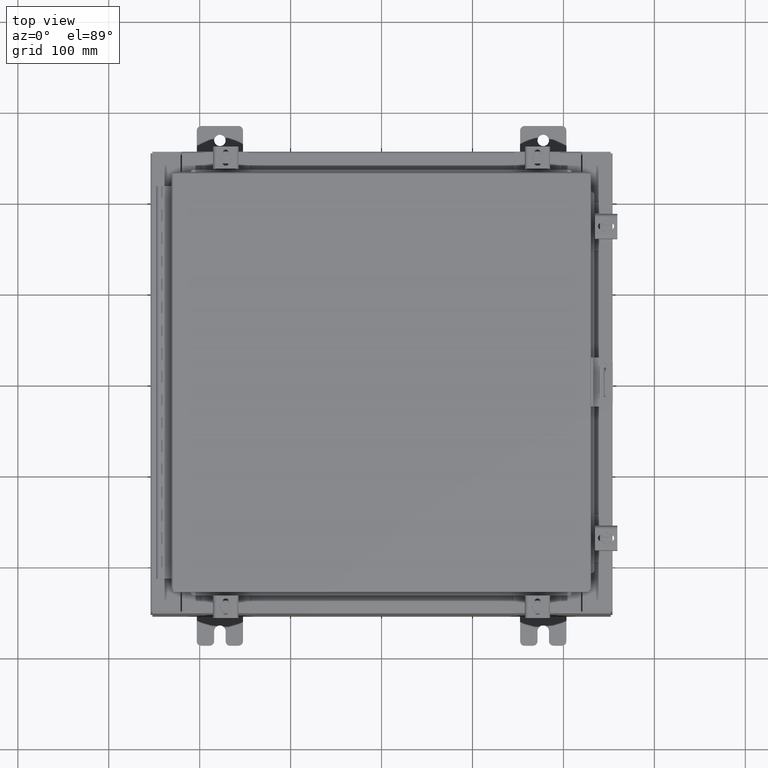
[diagram: clean part render]
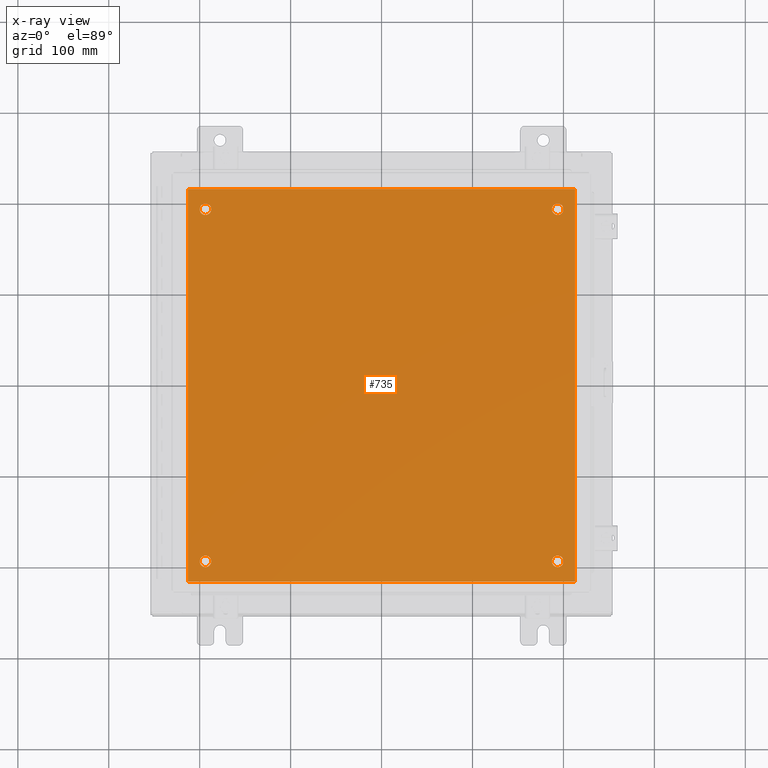
[diagram: x-ray — body ghosted, one internal face saturated and labeled with its STEP entity id]
A machine part, top view, then the same camera in x-ray: the body is ghosted and one INTERNAL B-rep face — a face not visible from any outside direction — is saturated and labeled: STEP entity #735.
In plain terms, the highlighted planar face has unit normal (0, 0, -1).
Its self-contained STEP definition (entity closure, byte-faithful):
#221 = AXIS2_PLACEMENT_3D ( 'NONE', #26834, #13195, #29152 ) ;
#227 = ORIENTED_EDGE ( 'NONE', *, *, #27272, .T. ) ;
#625 = DIRECTION ( 'NONE',  ( -0.0000000000000000000, -0.0000000000000000000, 1.000000000000000000 ) ) ;
#735 = ADVANCED_FACE ( 'NONE', ( #25279, #9274, #26006, #7859, #19254 ), #19135, .T. ) ;
#1739 = CARTESIAN_POINT ( 'NONE',  ( -8.500000000000000000, 8.500000000000000000, -0.1039999999999999800 ) ) ;
#1829 = VERTEX_POINT ( 'NONE', #10276 ) ;
#1837 = VECTOR ( 'NONE', #27667, 39.37007874015748100 ) ;
#1838 = VECTOR ( 'NONE', #4315, 39.37007874015748100 ) ;
#2103 = CARTESIAN_POINT ( 'NONE',  ( 7.375000000000003600, -7.625000000000000900, -0.1039999999999999800 ) ) ;
#2475 = EDGE_CURVE ( 'NONE', #26528, #27061, #7410, .T. ) ;
#2743 = DIRECTION ( 'NONE',  ( -0.0000000000000000000, -0.0000000000000000000, 1.000000000000000000 ) ) ;
#2793 = VERTEX_POINT ( 'NONE', #17335 ) ;
#3211 = AXIS2_PLACEMENT_3D ( 'NONE', #11004, #26928, #13293 ) ;
#3584 = VERTEX_POINT ( 'NONE', #8891 ) ;
#3894 = EDGE_LOOP ( 'NONE', ( #23508, #23464 ) ) ;
#4008 = EDGE_LOOP ( 'NONE', ( #28968, #29162, #14087, #11214 ) ) ;
#4076 = CIRCLE ( 'NONE', #25854, 0.2499999999999987000 ) ;
#4274 = ORIENTED_EDGE ( 'NONE', *, *, #26580, .T. ) ;
#4315 = DIRECTION ( 'NONE',  ( 0.0000000000000000000, 1.000000000000000000, 0.0000000000000000000 ) ) ;
#4427 = CARTESIAN_POINT ( 'NONE',  ( -7.875000000000001800, 7.625000000000000900, -0.1039999999999999800 ) ) ;
#4857 = VECTOR ( 'NONE', #19844, 39.37007874015748100 ) ;
#5639 = CARTESIAN_POINT ( 'NONE',  ( -7.625000000000001800, -7.625000000000000900, -0.1039999999999999800 ) ) ;
#6225 = CARTESIAN_POINT ( 'NONE',  ( -7.625000000000001800, -7.625000000000000900, -0.1039999999999999800 ) ) ;
#6639 = AXIS2_PLACEMENT_3D ( 'NONE', #14253, #625, #16538 ) ;
#6884 = ORIENTED_EDGE ( 'NONE', *, *, #25566, .T. ) ;
#7059 = VERTEX_POINT ( 'NONE', #18304 ) ;
#7326 = CIRCLE ( 'NONE', #10448, 0.2499999999999998100 ) ;
#7410 = CIRCLE ( 'NONE', #19947, 0.2499999999999987000 ) ;
#7736 = CARTESIAN_POINT ( 'NONE',  ( -8.500000000000000000, -8.499999999999998200, -0.1039999999999999800 ) ) ;
#7859 = FACE_BOUND ( 'NONE', #26220, .T. ) ;
#7866 = CIRCLE ( 'NONE', #11365, 0.2499999999999998100 ) ;
#7891 = LINE ( 'NONE', #14041, #1837 ) ;
#7900 = DIRECTION ( 'NONE',  ( -1.000000000000000000, 0.0000000000000000000, 0.0000000000000000000 ) ) ;
#8489 = DIRECTION ( 'NONE',  ( -1.000000000000000000, 0.0000000000000000000, 0.0000000000000000000 ) ) ;
#8724 = VECTOR ( 'NONE', #21356, 39.37007874015748100 ) ;
#8891 = CARTESIAN_POINT ( 'NONE',  ( -8.382999999999999100, 8.500000000000000000, -0.1039999999999998100 ) ) ;
#9108 = AXIS2_PLACEMENT_3D ( 'NONE', #5639, #21547, #7900 ) ;
#9274 = FACE_BOUND ( 'NONE', #12175, .T. ) ;
#9465 = VERTEX_POINT ( 'NONE', #21802 ) ;
#9807 = CARTESIAN_POINT ( 'NONE',  ( -7.375000000000001800, 7.625000000000000900, -0.1039999999999999800 ) ) ;
#10276 = CARTESIAN_POINT ( 'NONE',  ( 7.875000000000000900, 7.625000000000000900, -0.1039999999999999800 ) ) ;
#10448 = AXIS2_PLACEMENT_3D ( 'NONE', #6225, #22115, #8489 ) ;
#10506 = CIRCLE ( 'NONE', #221, 0.2499999999999998100 ) ;
#10587 = CARTESIAN_POINT ( 'NONE',  ( -7.625000000000001800, 7.625000000000000900, -0.1039999999999999800 ) ) ;
#10689 = EDGE_CURVE ( 'NONE', #27734, #28347, #27611, .T. ) ;
#11004 = CARTESIAN_POINT ( 'NONE',  ( 7.625000000000001800, -7.625000000000000900, -0.1039999999999999800 ) ) ;
#11214 = ORIENTED_EDGE ( 'NONE', *, *, #17063, .F. ) ;
#11365 = AXIS2_PLACEMENT_3D ( 'NONE', #10587, #26480, #12850 ) ;
#11500 = CIRCLE ( 'NONE', #6639, 0.2499999999999987000 ) ;
#11804 = DIRECTION ( 'NONE',  ( -1.000000000000000000, 0.0000000000000000000, 0.0000000000000000000 ) ) ;
#12175 = EDGE_LOOP ( 'NONE', ( #27015, #4274 ) ) ;
#12538 = EDGE_CURVE ( 'NONE', #28113, #2793, #7326, .T. ) ;
#12850 = DIRECTION ( 'NONE',  ( -1.000000000000000000, 0.0000000000000000000, 0.0000000000000000000 ) ) ;
#13016 = CARTESIAN_POINT ( 'NONE',  ( 7.875000000000000900, -7.625000000000000900, -0.1039999999999999800 ) ) ;
#13195 = DIRECTION ( 'NONE',  ( -0.0000000000000000000, -0.0000000000000000000, 1.000000000000000000 ) ) ;
#13293 = DIRECTION ( 'NONE',  ( -1.000000000000000000, 0.0000000000000000000, 0.0000000000000000000 ) ) ;
#14041 = CARTESIAN_POINT ( 'NONE',  ( -8.382999999999999100, 8.500000000000000000, -0.1039999999999998100 ) ) ;
#14087 = ORIENTED_EDGE ( 'NONE', *, *, #18924, .F. ) ;
#14253 = CARTESIAN_POINT ( 'NONE',  ( 7.625000000000001800, 7.625000000000000900, -0.1039999999999999800 ) ) ;
#14899 = ORIENTED_EDGE ( 'NONE', *, *, #17548, .T. ) ;
#14946 = EDGE_CURVE ( 'NONE', #3584, #27734, #7891, .T. ) ;
#15224 = CARTESIAN_POINT ( 'NONE',  ( -7.375000000000001800, -7.625000000000000900, -0.1039999999999999800 ) ) ;
#15240 = CARTESIAN_POINT ( 'NONE',  ( 7.625000000000001800, -7.625000000000000900, -0.1039999999999999800 ) ) ;
#15251 = EDGE_CURVE ( 'NONE', #18659, #17115, #10506, .T. ) ;
#16365 = CARTESIAN_POINT ( 'NONE',  ( 7.625000000000001800, 7.625000000000000900, -0.1039999999999999800 ) ) ;
#16538 = DIRECTION ( 'NONE',  ( -1.000000000000000000, 0.0000000000000000000, 0.0000000000000000000 ) ) ;
#16977 = LINE ( 'NONE', #1739, #4857 ) ;
#17063 = EDGE_CURVE ( 'NONE', #28347, #9465, #26039, .T. ) ;
#17115 = VERTEX_POINT ( 'NONE', #4427 ) ;
#17335 = CARTESIAN_POINT ( 'NONE',  ( -7.875000000000001800, -7.625000000000000900, -0.1039999999999999800 ) ) ;
#17548 = EDGE_CURVE ( 'NONE', #17115, #18659, #7866, .T. ) ;
#17602 = AXIS2_PLACEMENT_3D ( 'NONE', #20513, #18200, #17627 ) ;
#17627 = DIRECTION ( 'NONE',  ( -1.000000000000000000, 0.0000000000000000000, -0.0000000000000000000 ) ) ;
#18200 = DIRECTION ( 'NONE',  ( 0.0000000000000000000, 0.0000000000000000000, -1.000000000000000000 ) ) ;
#18304 = CARTESIAN_POINT ( 'NONE',  ( 7.375000000000003600, 7.625000000000000900, -0.1039999999999999800 ) ) ;
#18373 = CARTESIAN_POINT ( 'NONE',  ( 8.383000000000000900, -8.499999999999998200, -0.1039999999999999800 ) ) ;
#18659 = VERTEX_POINT ( 'NONE', #9807 ) ;
#18661 = DIRECTION ( 'NONE',  ( -1.000000000000000000, 0.0000000000000000000, 0.0000000000000000000 ) ) ;
#18663 = ORIENTED_EDGE ( 'NONE', *, *, #15251, .T. ) ;
#18732 = EDGE_CURVE ( 'NONE', #2793, #28113, #28021, .T. ) ;
#18924 = EDGE_CURVE ( 'NONE', #9465, #3584, #16977, .T. ) ;
#19135 = PLANE ( 'NONE',  #17602 ) ;
#19254 = FACE_OUTER_BOUND ( 'NONE', #4008, .T. ) ;
#19844 = DIRECTION ( 'NONE',  ( -1.000000000000000000, -0.0000000000000000000, -0.0000000000000000000 ) ) ;
#19947 = AXIS2_PLACEMENT_3D ( 'NONE', #15240, #24231, #11804 ) ;
#20268 = CARTESIAN_POINT ( 'NONE',  ( 8.383000000000000900, -8.499999999999998200, -0.1039999999999998100 ) ) ;
#20405 = EDGE_LOOP ( 'NONE', ( #6884, #227 ) ) ;
#20513 = CARTESIAN_POINT ( 'NONE',  ( 0.0000000000000000000, 0.0000000000000000000, -0.1039999999999999800 ) ) ;
#21356 = DIRECTION ( 'NONE',  ( 1.000000000000000000, 0.0000000000000000000, 0.0000000000000000000 ) ) ;
#21480 = CIRCLE ( 'NONE', #3211, 0.2499999999999987000 ) ;
#21547 = DIRECTION ( 'NONE',  ( -0.0000000000000000000, -0.0000000000000000000, 1.000000000000000000 ) ) ;
#21802 = CARTESIAN_POINT ( 'NONE',  ( 8.383000000000000900, 8.500000000000000000, -0.1039999999999999800 ) ) ;
#22115 = DIRECTION ( 'NONE',  ( -0.0000000000000000000, -0.0000000000000000000, 1.000000000000000000 ) ) ;
#23464 = ORIENTED_EDGE ( 'NONE', *, *, #18732, .T. ) ;
#23508 = ORIENTED_EDGE ( 'NONE', *, *, #12538, .T. ) ;
#24231 = DIRECTION ( 'NONE',  ( -0.0000000000000000000, -0.0000000000000000000, 1.000000000000000000 ) ) ;
#25279 = FACE_BOUND ( 'NONE', #3894, .T. ) ;
#25566 = EDGE_CURVE ( 'NONE', #1829, #7059, #4076, .T. ) ;
#25854 = AXIS2_PLACEMENT_3D ( 'NONE', #16365, #2743, #18661 ) ;
#26006 = FACE_BOUND ( 'NONE', #20405, .T. ) ;
#26039 = LINE ( 'NONE', #20268, #1838 ) ;
#26220 = EDGE_LOOP ( 'NONE', ( #18663, #14899 ) ) ;
#26480 = DIRECTION ( 'NONE',  ( -0.0000000000000000000, -0.0000000000000000000, 1.000000000000000000 ) ) ;
#26528 = VERTEX_POINT ( 'NONE', #13016 ) ;
#26580 = EDGE_CURVE ( 'NONE', #27061, #26528, #21480, .T. ) ;
#26834 = CARTESIAN_POINT ( 'NONE',  ( -7.625000000000001800, 7.625000000000000900, -0.1039999999999999800 ) ) ;
#26928 = DIRECTION ( 'NONE',  ( -0.0000000000000000000, -0.0000000000000000000, 1.000000000000000000 ) ) ;
#27015 = ORIENTED_EDGE ( 'NONE', *, *, #2475, .T. ) ;
#27061 = VERTEX_POINT ( 'NONE', #2103 ) ;
#27119 = CARTESIAN_POINT ( 'NONE',  ( -8.382999999999999100, -8.499999999999998200, -0.1039999999999998100 ) ) ;
#27272 = EDGE_CURVE ( 'NONE', #7059, #1829, #11500, .T. ) ;
#27611 = LINE ( 'NONE', #7736, #8724 ) ;
#27667 = DIRECTION ( 'NONE',  ( 0.0000000000000000000, -1.000000000000000000, 0.0000000000000000000 ) ) ;
#27734 = VERTEX_POINT ( 'NONE', #27119 ) ;
#28021 = CIRCLE ( 'NONE', #9108, 0.2499999999999998100 ) ;
#28113 = VERTEX_POINT ( 'NONE', #15224 ) ;
#28347 = VERTEX_POINT ( 'NONE', #18373 ) ;
#28968 = ORIENTED_EDGE ( 'NONE', *, *, #10689, .F. ) ;
#29152 = DIRECTION ( 'NONE',  ( -1.000000000000000000, 0.0000000000000000000, 0.0000000000000000000 ) ) ;
#29162 = ORIENTED_EDGE ( 'NONE', *, *, #14946, .F. ) ;